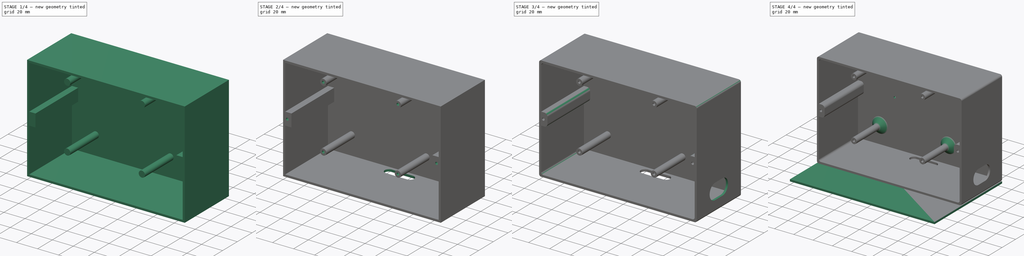
[diagram: build sequence overview — one tinted view per stage of 4, left to right]
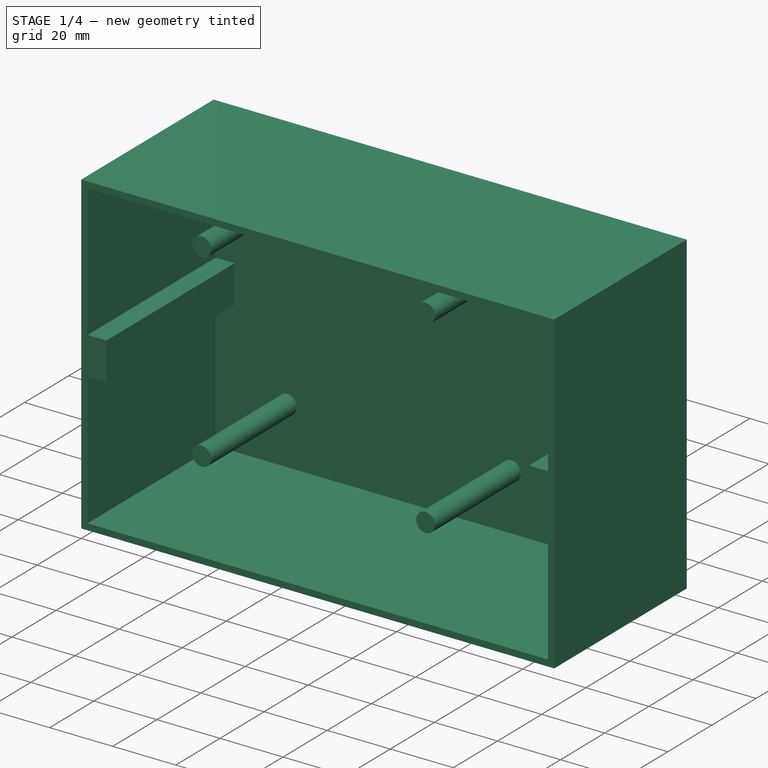
[diagram: stage 1 of 4 — iso view after this stage's code; geometry added in this stage tinted green]
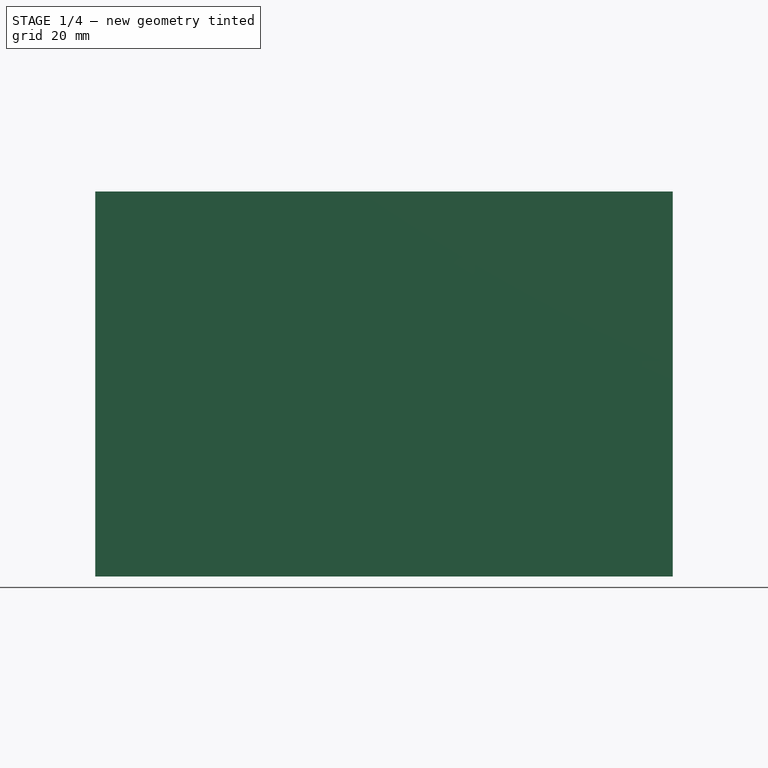
[diagram: stage 1 of 4 — front view after this stage's code; geometry added in this stage tinted green]
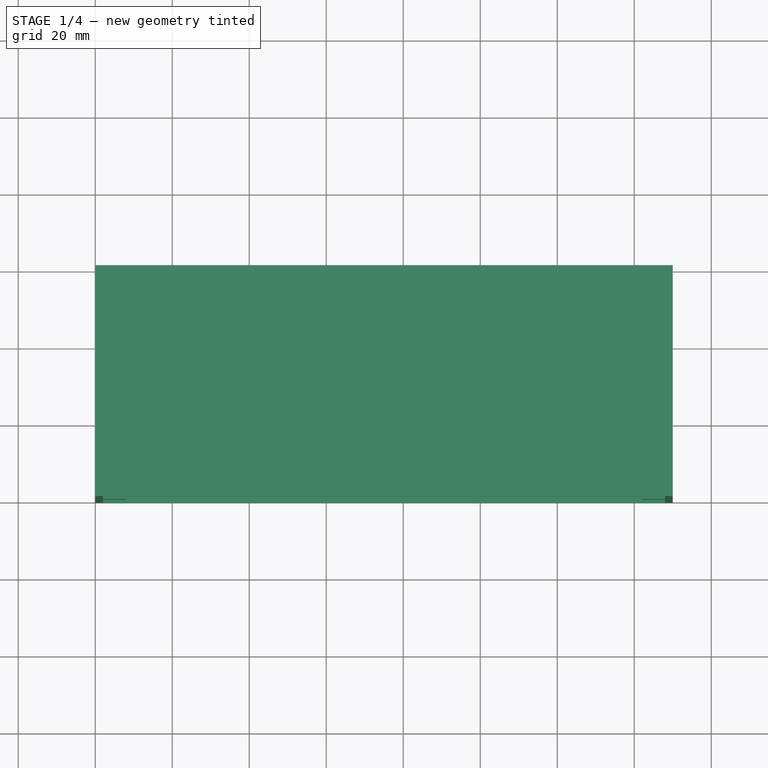
[diagram: stage 1 of 4 — top view after this stage's code; geometry added in this stage tinted green]
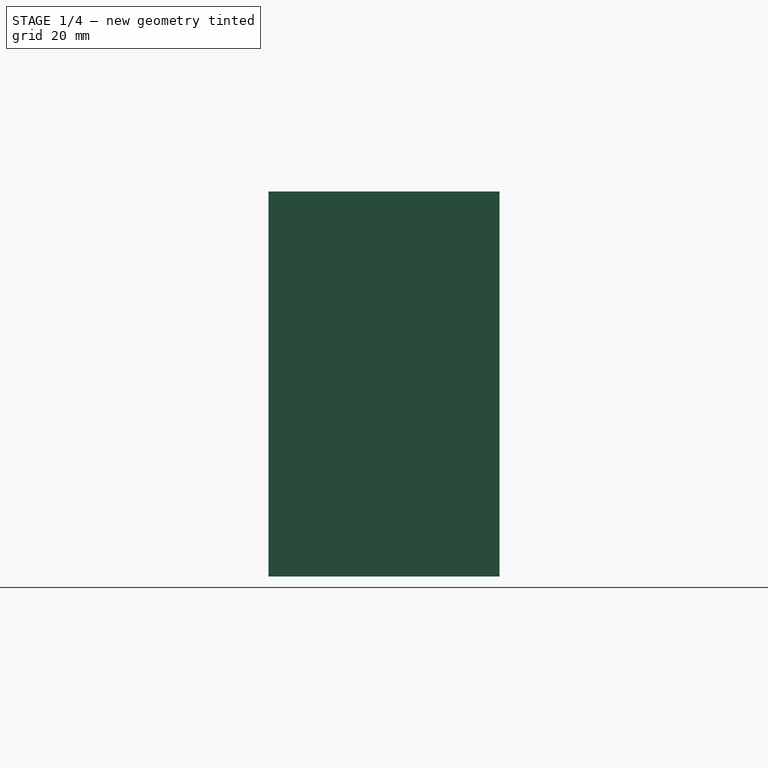
[diagram: stage 1 of 4 — right view after this stage's code; geometry added in this stage tinted green]
FCSTD DOCUMENT  (FreeCAD 0.19R22665 (Git))
Label: box_part
License: All rights reserved
LicenseURL: http://en.wikipedia.org/wiki/All_rights_reserved
objects: Sketcher::SketchObject×9, PartDesign::Pocket×4, PartDesign::Pad×3, PartDesign::Fillet×3, PartDesign::CoordinateSystem×3, PartDesign::Hole×2, PartDesign::Body×2, PartDesign::ShapeBinder×1, PartDesign::Chamfer×1
note: 41 computed .brp shape members not serialized (recipe doc carries the construction recipe); baked Part::Feature solids carry a one-line shape summary decoded from their .brp

FEATURE [Sketcher::SketchObject] Sketch
  MapMode = 5
  Placement = pos=(0,0,0) rot=(1,0,0;1.5708rad)
  Support = -> [XZ_Plane]
  sketch-geometry (4):
    g0: LineSegment StartX=0 StartY=0 StartZ=0 EndX=150 EndY=0 EndZ=0
    g1: LineSegment StartX=150 StartY=0 StartZ=0 EndX=150 EndY=100 EndZ=0
    g2: LineSegment StartX=150 StartY=100 StartZ=0 EndX=0 EndY=100 EndZ=0
    g3: LineSegment StartX=0 StartY=100 StartZ=0 EndX=0 EndY=0 EndZ=0
  constraints (11):
    c: Coincident(g0,g1)
    c: Coincident(g1,g2)
    c: Coincident(g2,g3)
    c: Coincident(g3,g0)
    c: Horizontal(g0)
    c: Horizontal(g2)
    c: Vertical(g1)
    c: Vertical(g3)
    c: Coincident(g0,g-1)
    c: Distance(g2) = 150
    c: Distance(g3) = 100
FEATURE [PartDesign::Pad] Pad
  Direction = (1,1,1)
  Length = 60
  Length2 = 100
  Placement = pos=(0,0,0) rot=(1,0,0;1.5708rad)
  Profile = -> Sketch
  Type = 0
FEATURE [Sketcher::SketchObject] Sketch001
  ExternalGeometry = -> [Pad]
  MapMode = 5
  Placement = pos=(0,-60,1e-16) rot=(1,0,0;1.5708rad)
  Support = -> [Pad]
  sketch-geometry (13):
    g0: LineSegment StartX=2 StartY=98 StartZ=0 EndX=148 EndY=98 EndZ=0
    g1: LineSegment StartX=148 StartY=98 StartZ=0 EndX=148 EndY=56 EndZ=0
    g2: LineSegment StartX=148 StartY=56 StartZ=0 EndX=142 EndY=56 EndZ=0
    g3: LineSegment StartX=142 StartY=56 StartZ=0 EndX=142 EndY=44 EndZ=0
    g4: LineSegment StartX=142 StartY=44 StartZ=0 EndX=148 EndY=44 EndZ=0
    g5: LineSegment StartX=148 StartY=44 StartZ=0 EndX=148 EndY=2 EndZ=0
    g6: LineSegment StartX=148 StartY=2 StartZ=0 EndX=2 EndY=2 EndZ=0
    g7: LineSegment StartX=2 StartY=2 StartZ=0 EndX=2 EndY=44 EndZ=0
    g8: LineSegment StartX=2 StartY=44 StartZ=0 EndX=8 EndY=44 EndZ=0
    g9: LineSegment StartX=8 StartY=44 StartZ=0 EndX=8 EndY=56 EndZ=0
    g10: LineSegment StartX=8 StartY=56 StartZ=0 EndX=2 EndY=56 EndZ=0
    g11: LineSegment StartX=2 StartY=56 StartZ=0 EndX=2 EndY=98 EndZ=0
    g12: LineSegment [constr] StartX=0 StartY=50 StartZ=0 EndX=150 EndY=50 EndZ=0
  constraints (37):
    c: Horizontal(g0)
    c: Coincident(g0,g1)
    c: Vertical(g1)
    c: Coincident(g1,g2)
    c: Horizontal(g2)
    c: Coincident(g2,g3)
    c: Vertical(g3)
    c: Coincident(g3,g4)
    c: Horizontal(g4)
    c: Coincident(g4,g5)
    c: Vertical(g5)
    c: Coincident(g5,g6)
    c: Horizontal(g6)
    c: Coincident(g6,g7)
    c: Vertical(g7)
    c: Coincident(g7,g8)
    c: Horizontal(g8)
    c: Coincident(g8,g9)
    c: Vertical(g9)
    c: Coincident(g9,g10)
    c: Horizontal(g10)
    c: Coincident(g10,g11)
    c: Coincident(g11,g0)
    c: Vertical(g11)
    c: DistanceX(g-1,g6) = 2
    c: DistanceY(g-1,g6) = 2
    c: DistanceX(g5,g-5) = 2
    c: DistanceY(g0,g-6) = 2
    c: PointOnObject(g12,g-4)
    c: PointOnObject(g12,g-5)
    c: Symmetric(g-6,g-1,g12)
    c: Symmetric(g10,g7,g12)
    c: DistanceX(g10,g10) = 6
    c: DistanceY(g9,g9) = 12
    c: Equal(g2,g10)
    c: Equal(g3,g9)
    c: Symmetric(g1,g4,g12)
FEATURE [PartDesign::Pocket] Pocket
  BaseFeature = -> Pad
  Length = 58
  Length2 = 100
  Placement = pos=(0,0,0) rot=(1,0,0;1.5708rad)
  Profile = -> Sketch001
  Type = 0
FEATURE [Sketcher::SketchObject] Sketch002
  ExternalGeometry = -> [Pocket]
  MapMode = 5
  Placement = pos=(0,-2,-4e-16) rot=(1,0,0;1.5708rad)
  Support = -> [Pocket]
  sketch-geometry (20):
    g0: LineSegment [constr] StartX=20.75 StartY=68 StartZ=0 EndX=100.75 EndY=68 EndZ=0
    g1: LineSegment [constr] StartX=100.75 StartY=68 StartZ=0 EndX=100.75 EndY=32 EndZ=0
    g2: LineSegment [constr] StartX=100.75 StartY=32 StartZ=0 EndX=20.75 EndY=32 EndZ=0
    g3: LineSegment [constr] StartX=20.75 StartY=32 StartZ=0 EndX=20.75 EndY=68 EndZ=0
    g4: LineSegment [constr] StartX=8 StartY=50 StartZ=0 EndX=142 EndY=50 EndZ=0
    g5: Circle [constr] CenterX=121.75 CenterY=50 CenterZ=0 NormalX=0 NormalY=0 NormalZ=1 AngleXU=0 Radius=9.5
    g6: LineSegment [constr] StartX=101.75 StartY=14 StartZ=0 EndX=18.75 EndY=14 EndZ=0
    g7: LineSegment [constr] StartX=18.75 StartY=14 StartZ=0 EndX=18.75 EndY=86 EndZ=0
    g8: LineSegment [constr] StartX=18.75 StartY=86 StartZ=0 EndX=101.75 EndY=86 EndZ=0
    g9: LineSegment [constr] StartX=101.75 StartY=86 StartZ=0 EndX=101.75 EndY=14 EndZ=0
    g10: LineSegment [constr] StartX=101.75 StartY=59 StartZ=0 EndX=107.75 EndY=59 EndZ=0
    g11: LineSegment [constr] StartX=107.75 StartY=59 StartZ=0 EndX=107.75 EndY=72 EndZ=0
    g12: LineSegment [constr] StartX=107.75 StartY=72 StartZ=0 EndX=101.75 EndY=72 EndZ=0
    g13: LineSegment [constr] StartX=101.75 StartY=72 StartZ=0 EndX=101.75 EndY=59 EndZ=0
    g14: Circle [constr] CenterX=13.375 CenterY=50 CenterZ=0 NormalX=0 NormalY=0 NormalZ=1 AngleXU=0 Radius=5.375
    g15: Circle [constr] CenterX=136.625 CenterY=50 CenterZ=0 NormalX=0 NormalY=0 NormalZ=1 AngleXU=0 Radius=5.375
    g16: Circle CenterX=24.75 CenterY=80 CenterZ=0 NormalX=0 NormalY=0 NormalZ=1 AngleXU=0 Radius=3
    g17: Circle CenterX=95.75 CenterY=80 CenterZ=0 NormalX=0 NormalY=0 NormalZ=1 AngleXU=0 Radius=3
    g18: Circle CenterX=24.75 CenterY=20 CenterZ=0 NormalX=0 NormalY=0 NormalZ=1 AngleXU=0 Radius=3
    g19: Circle CenterX=95.75 CenterY=20 CenterZ=0 NormalX=0 NormalY=0 NormalZ=1 AngleXU=0 Radius=3
  constraints (59):
    c: Coincident(g0,g1)
    c: Coincident(g1,g2)
    c: Coincident(g2,g3)
    c: Coincident(g3,g0)
    c: Horizontal(g0)
    c: Horizontal(g2)
    c: Vertical(g1)
    c: DistanceY(g3,g3) = 36
    c: DistanceX(g0,g0) = 80
    c: PointOnObject(g4,g-13)
    c: PointOnObject(g4,g-11)
    c: Symmetric(g-13,g-14,g4)
    c: Symmetric(g0,g2,g4)
    c: PointOnObject(g5,g4)
    c: Diameter(g5) = 19
    c: Coincident(g6,g7)
    c: Coincident(g7,g8)
    c: Coincident(g8,g9)
    c: Coincident(g9,g6)
    c: Horizontal(g6)
    c: Horizontal(g8)
    c: Vertical(g7)
    c: Vertical(g9)
    c: DistanceX(g6,g2) = 2
    c: DistanceY(g0,g7) = 18
    c: DistanceY(g6,g2) = 18
    c: DistanceX(g8,g8) = 83
    c: Coincident(g10,g11)
    c: Coincident(g11,g12)
    c: Coincident(g12,g13)
    c: Coincident(g13,g10)
    c: Horizontal(g10)
    c: Horizontal(g12)
    c: Vertical(g11)
    c: Vertical(g13)
    c: PointOnObject(g10,g9)
    c: DistanceY(g11,g11) = 13
    c: DistanceY(g12,g8) = 14
    c: DistanceX(g12,g12) = 6
    c: DistanceX(g6,g5) = 20
    c: PointOnObject(g14,g4)
    c: PointOnObject(g4,g14)
    c: Tangent(g14,g7)
    c: PointOnObject(g15,g4)
    c: PointOnObject(g4,g15)
    c: Tangent(g15,g5)
    c: Equal(g15,g14)
    c: DistanceX(g7,g16) = 6
    c: DistanceY(g16,g7) = 6
    c: Diameter(g16) = 6
    c: Horizontal(g17,g16)
    c: Equal(g17,g16)
    c: DistanceX(g17,g8) = 6
    c: Equal(g18,g16)
    c: Vertical(g16,g18)
    c: DistanceY(g6,g18) = 6
    c: Equal(g19,g16)
    c: Horizontal(g19,g18)
    c: Vertical(g17,g19)
FEATURE [PartDesign::Pad] Pad001
  BaseFeature = -> Pocket
  Direction = (1,1,1)
  Length = 38.8
  Length2 = 100
  Placement = pos=(0,0,0) rot=(1,0,0;1.5708rad)
  Profile = -> Sketch002
  Type = 0
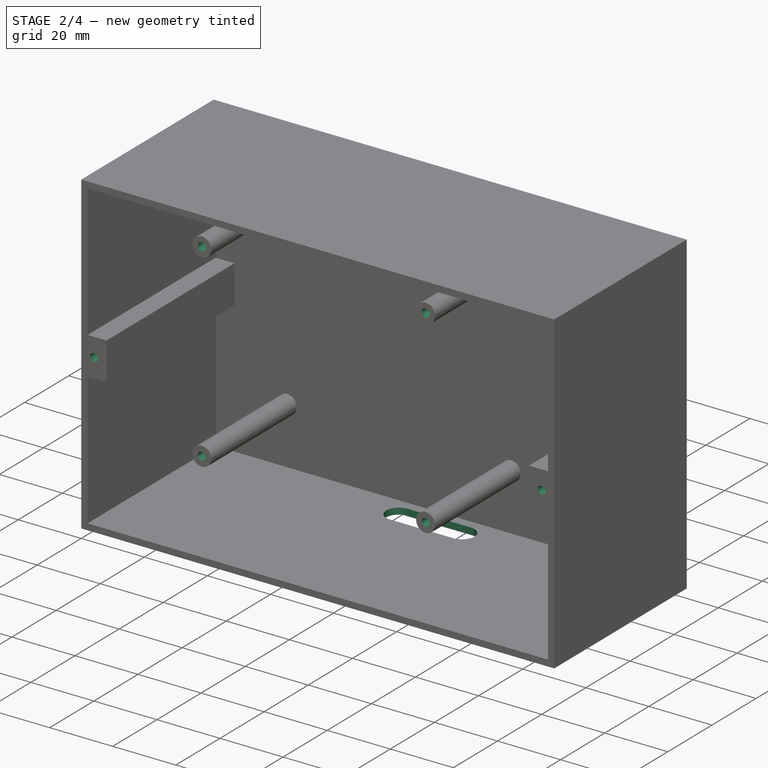
[diagram: stage 2 of 4 — iso view after this stage's code; geometry added in this stage tinted green]
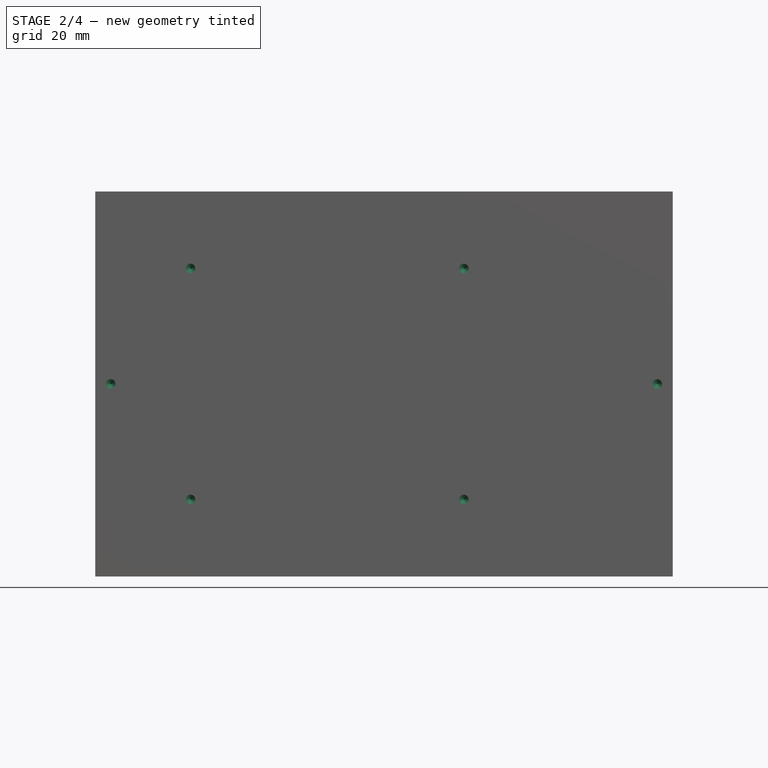
[diagram: stage 2 of 4 — front view after this stage's code; geometry added in this stage tinted green]
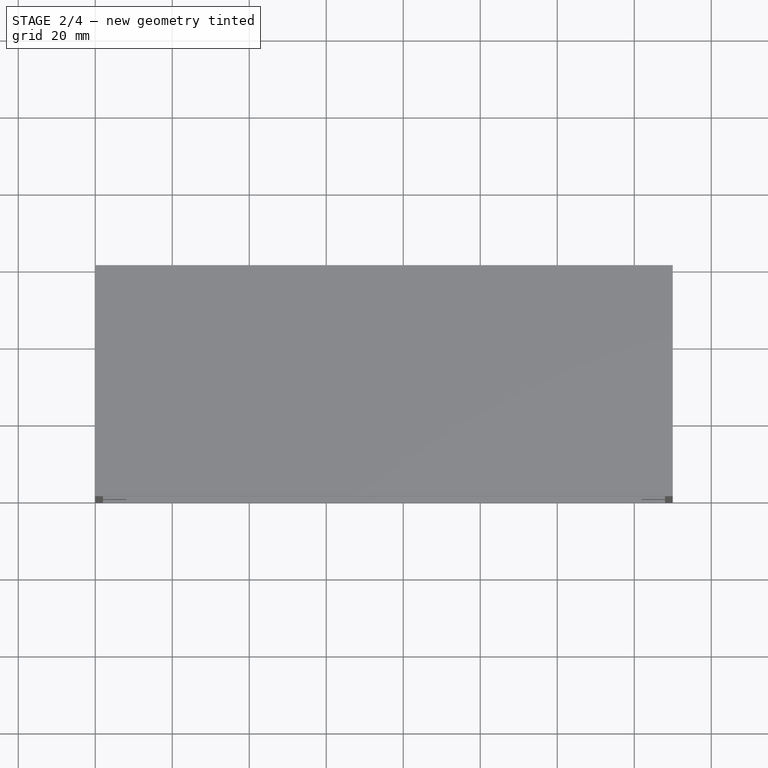
[diagram: stage 2 of 4 — top view after this stage's code; geometry added in this stage tinted green]
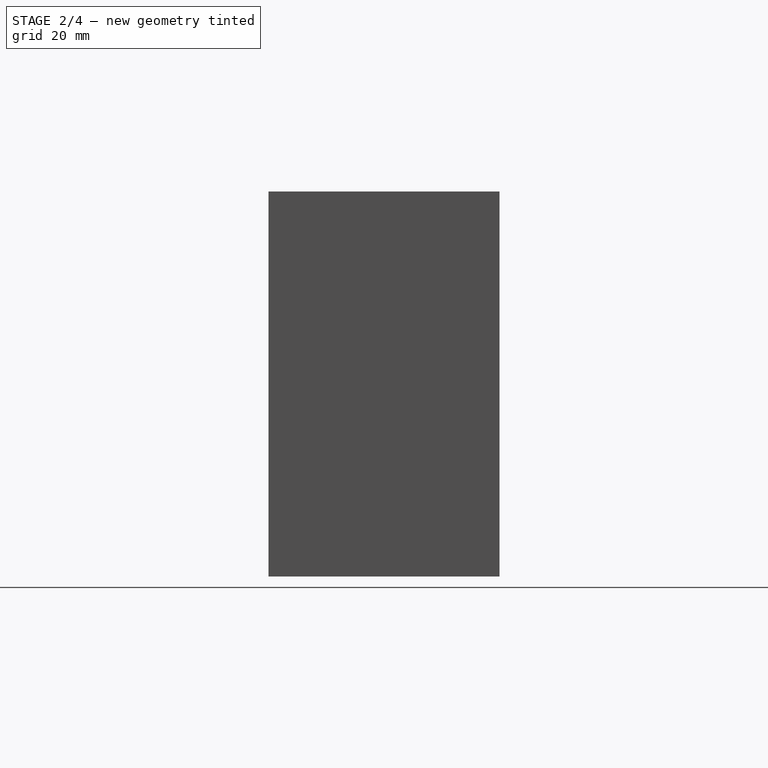
[diagram: stage 2 of 4 — right view after this stage's code; geometry added in this stage tinted green]
FEATURE [Sketcher::SketchObject] Sketch003
  ExternalGeometry = -> [Pad001]
  MapMode = 5
  Placement = pos=(0,-40.8,-2.53e-14) rot=(1,0,0;1.5708rad)
  Support = -> [Pad001]
  sketch-geometry (4):
    g0: Circle CenterX=24.75 CenterY=80 CenterZ=0 NormalX=0 NormalY=0 NormalZ=1 AngleXU=0 Radius=1.5
    g1: Circle CenterX=95.75 CenterY=80 CenterZ=0 NormalX=0 NormalY=0 NormalZ=1 AngleXU=0 Radius=1.5
    g2: Circle CenterX=95.75 CenterY=20 CenterZ=0 NormalX=0 NormalY=0 NormalZ=1 AngleXU=0 Radius=1.5
    g3: Circle CenterX=24.75 CenterY=20 CenterZ=0 NormalX=0 NormalY=0 NormalZ=1 AngleXU=0 Radius=1.5
  constraints (8):
    c: Coincident(g0,g-3)
    c: Diameter(g0) = 3
    c: Coincident(g1,g-4)
    c: Coincident(g2,g-6)
    c: Coincident(g3,g-5)
    c: Equal(g3,g0)
    c: Equal(g1,g0)
    c: Equal(g1,g2)
FEATURE [PartDesign::Hole] Hole
  BaseFeature = -> Pad001
  Depth = 20
  DepthType = 0
  Diameter = 2.5
  DrillPoint = 1
  DrillPointAngle = 118
  HoleCutCountersinkAngle = 90
  HoleCutDepth = 0
  HoleCutDiameter = 3
  HoleCutType = 0
  ModelActualThread = false
  Placement = pos=(0,0,0) rot=(1,0,0;1.5708rad)
  Profile = -> Sketch003
  Refine = true
  Tapered = false
  TaperedAngle = 90
  ThreadAngle = 60
  ThreadClass = 0
  ThreadCutOffInner = 0.0541266
  ThreadCutOffOuter = 0.108253
  ThreadDirection = 0
  ThreadFit = 0
  ThreadPitch = 0.5
  ThreadSize = 3
  ThreadType = 1
  Threaded = true
FEATURE [Sketcher::SketchObject] Sketch004
  ExternalGeometry = -> [Hole]
  MapMode = 5
  Placement = pos=(0,-60,1.34e-14) rot=(1,0,0;1.5708rad)
  Support = -> [Hole]
  sketch-geometry (7):
    g0: Circle CenterX=146 CenterY=50 CenterZ=0 NormalX=0 NormalY=0 NormalZ=1 AngleXU=0 Radius=3
    g1: Circle CenterX=4 CenterY=50 CenterZ=0 NormalX=0 NormalY=0 NormalZ=1 AngleXU=0 Radius=3
    g2: LineSegment [constr] StartX=8 StartY=56 StartZ=0 EndX=8 EndY=100 EndZ=0
    g3: LineSegment [constr] StartX=4 StartY=100 StartZ=0 EndX=4 EndY=44 EndZ=0
    g4: LineSegment [constr] StartX=8 StartY=50 StartZ=0 EndX=0 EndY=50 EndZ=0
    g5: LineSegment [constr] StartX=142 StartY=56 StartZ=0 EndX=142 EndY=100 EndZ=0
    g6: LineSegment [constr] StartX=146 StartY=100 StartZ=0 EndX=146 EndY=44 EndZ=0
  constraints (21):
    c: Equal(g1,g0)
    c: Diameter(g0) = 6
    c: Horizontal(g0,g1)
    c: Coincident(g2,g-13)
    c: PointOnObject(g2,g-9)
    c: Vertical(g2)
    c: PointOnObject(g3,g-9)
    c: PointOnObject(g3,g-7)
    c: Symmetric(g-9,g2,g3)
    c: PointOnObject(g1,g3)
    c: PointOnObject(g4,g-13)
    c: PointOnObject(g4,g-6)
    c: Symmetric(g2,g-13,g4)
    c: PointOnObject(g1,g4)
    c: Coincident(g5,g-11)
    c: PointOnObject(g5,g-9)
    c: Vertical(g5)
    c: PointOnObject(g6,g-9)
    c: PointOnObject(g6,g-14)
    c: Symmetric(g5,g-9,g6)
    c: PointOnObject(g0,g6)
FEATURE [PartDesign::Hole] Hole001
  BaseFeature = -> Hole
  Depth = 30
  DepthType = 0
  Diameter = 2.5
  DrillPoint = 1
  DrillPointAngle = 118
  HoleCutCountersinkAngle = 90
  HoleCutDepth = 0
  HoleCutDiameter = 3
  HoleCutType = 0
  ModelActualThread = false
  Placement = pos=(0,0,0) rot=(1,0,0;1.5708rad)
  Profile = -> Sketch004
  Refine = true
  Tapered = false
  TaperedAngle = 90
  ThreadAngle = 60
  ThreadClass = 0
  ThreadCutOffInner = 0.0541266
  ThreadCutOffOuter = 0.108253
  ThreadDirection = 0
  ThreadFit = 0
  ThreadPitch = 0.5
  ThreadSize = 3
  ThreadType = 1
  Threaded = true
FEATURE [Sketcher::SketchObject] Sketch005
  ExternalGeometry = -> [Hole001]
  MapMode = 5
  Placement = pos=(0,0,0) rot=(1,0,0;3.14159rad)
  Support = -> [Hole001]
  sketch-geometry (5):
    g0: LineSegment [constr] StartX=75 StartY=60 StartZ=0 EndX=75 EndY=0 EndZ=0
    g1: ArcOfCircle CenterX=65 CenterY=9 CenterZ=0 NormalX=0 NormalY=0 NormalZ=1 AngleXU=0 Radius=4 StartAngle=1.5708 EndAngle=4.71239
    g2: ArcOfCircle CenterX=85 CenterY=9 CenterZ=0 NormalX=0 NormalY=0 NormalZ=1 AngleXU=0 Radius=4 StartAngle=4.71239 EndAngle=7.85398
    g3: LineSegment StartX=65 StartY=5 StartZ=0 EndX=85 EndY=5 EndZ=0
    g4: LineSegment StartX=65 StartY=13 StartZ=0 EndX=85 EndY=13 EndZ=0
  constraints (12):
    c: PointOnObject(g0,g-3)
    c: PointOnObject(g0,g-5)
    c: Symmetric(g-4,g-6,g0)
    c: Tangent(g1,g4)
    c: Tangent(g1,g3)
    c: Tangent(g3,g2)
    c: Tangent(g4,g2)
    c: Horizontal(g3)
    c: DistanceX(g1,g2) = 20
    c: DistanceY(g1,g1) = 8
    c: Symmetric(g2,g1,g0)
    c: DistanceY(g0,g2) = 5
FEATURE [PartDesign::Pocket] Pocket001
  BaseFeature = -> Hole001
  Length = 5
  Length2 = 100
  Placement = pos=(0,0,0) rot=(1,0,0;1.5708rad)
  Profile = -> Sketch005
  Type = 2
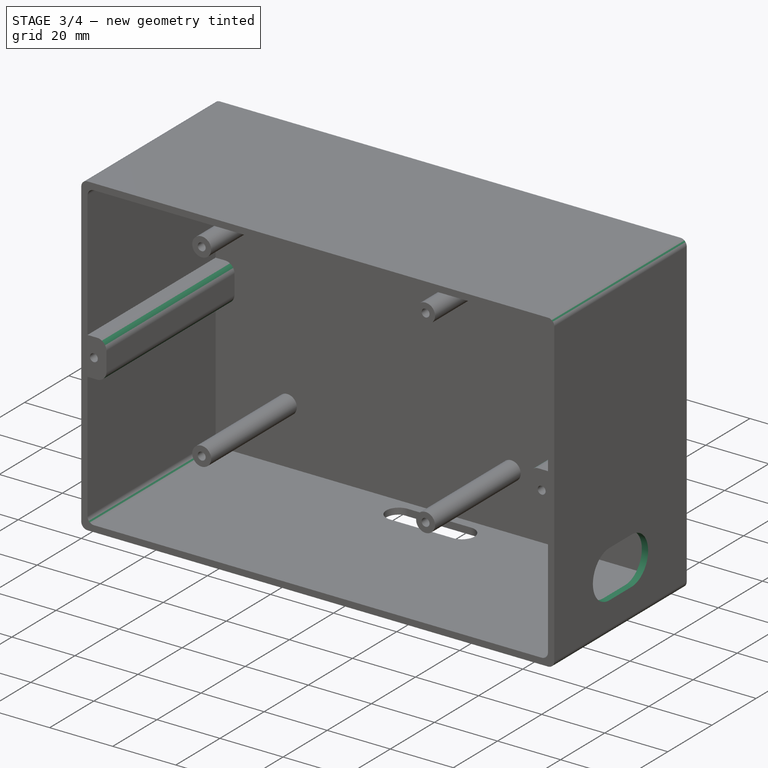
[diagram: stage 3 of 4 — iso view after this stage's code; geometry added in this stage tinted green]
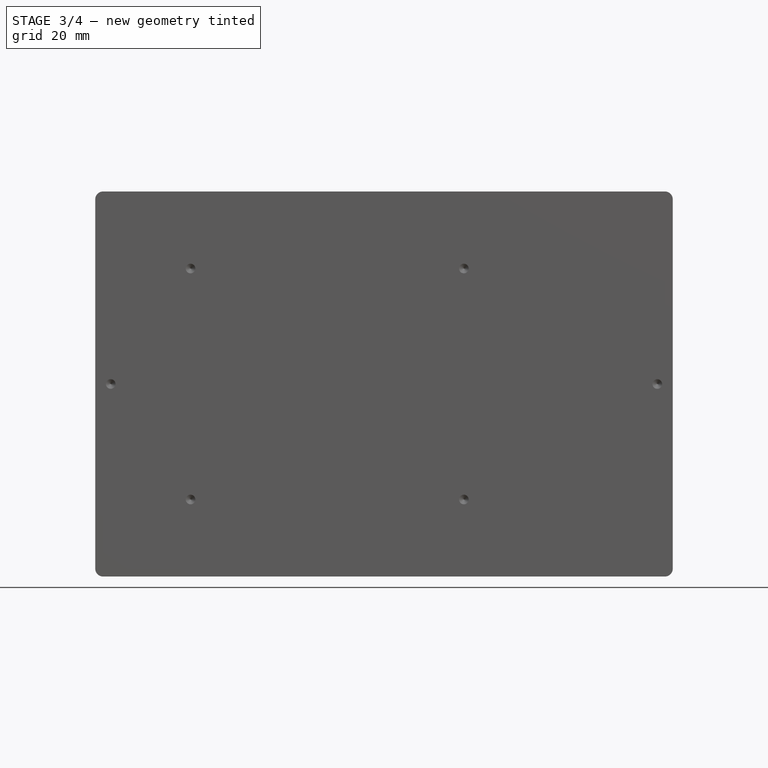
[diagram: stage 3 of 4 — front view after this stage's code; geometry added in this stage tinted green]
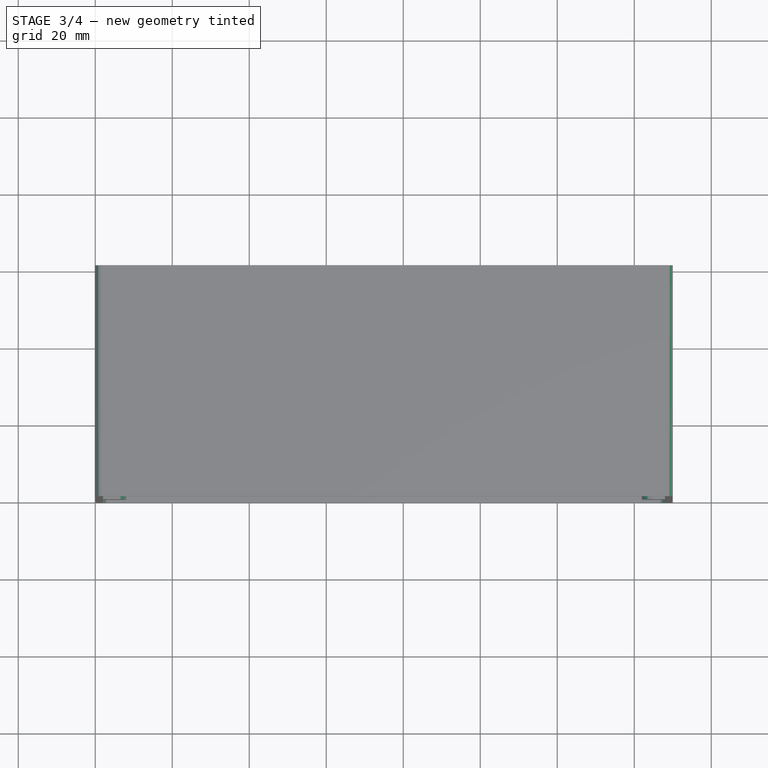
[diagram: stage 3 of 4 — top view after this stage's code; geometry added in this stage tinted green]
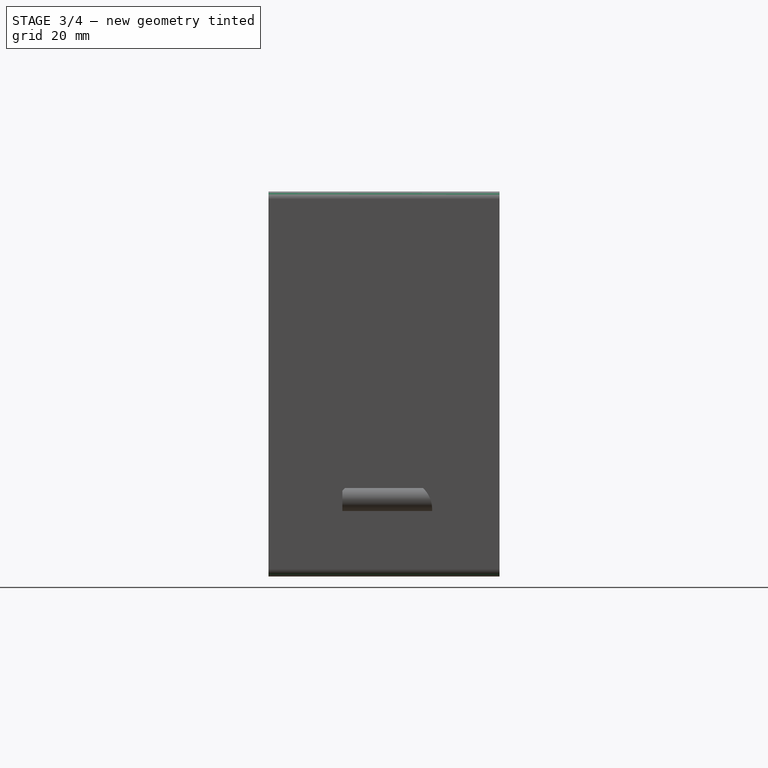
[diagram: stage 3 of 4 — right view after this stage's code; geometry added in this stage tinted green]
FEATURE [Sketcher::SketchObject] Sketch006
  ExternalGeometry = -> [Pocket001]
  MapMode = 5
  Placement = pos=(150,0,0) rot=(0.707107,0,0.707107;3.14159rad)
  Support = -> [Pocket001]
  sketch-geometry (5):
    g0: LineSegment [constr] StartX=0 StartY=30 StartZ=0 EndX=2 EndY=30 EndZ=0
    g1: ArcOfCircle CenterX=17.5 CenterY=35 CenterZ=0 NormalX=0 NormalY=0 NormalZ=1 AngleXU=0 Radius=7.5 StartAngle=1e-16 EndAngle=3.14159
    g2: ArcOfCircle CenterX=17.5 CenterY=25 CenterZ=0 NormalX=0 NormalY=0 NormalZ=1 AngleXU=0 Radius=7.5 StartAngle=3.14159 EndAngle=6.28319
    g3: LineSegment StartX=10 StartY=35 StartZ=0 EndX=10 EndY=25 EndZ=0
    g4: LineSegment StartX=25 StartY=35 StartZ=0 EndX=25 EndY=25 EndZ=0
  constraints (12):
    c: PointOnObject(g0,g-6)
    c: PointOnObject(g0,g-4)
    c: Symmetric(g-6,g-1,g0)
    c: Tangent(g1,g4)
    c: Tangent(g1,g3)
    c: Tangent(g3,g2)
    c: Tangent(g4,g2)
    c: Vertical(g3)
    c: Symmetric(g1,g2,g0)
    c: DistanceX(g1,g1) = 15
    c: Distance(g1,g2) = 10
    c: DistanceX(g-6,g1) = 10
FEATURE [PartDesign::Pocket] Pocket002
  BaseFeature = -> Pocket001
  Length = 5
  Length2 = 100
  Placement = pos=(0,0,0) rot=(1,0,0;1.5708rad)
  Profile = -> Sketch006
  Type = 2
FEATURE [Sketcher::SketchObject] Sketch007
  ExternalGeometry = -> [Pocket002]
  MapMode = 5
  Placement = pos=(8e-16,-40.8,-5.6e-15) rot=(1,0,0;1.5708rad)
  Support = -> [Pocket002]
  sketch-geometry (5):
    g0: LineSegment [constr] StartX=9e-16 StartY=50 StartZ=0 EndX=142 EndY=50 EndZ=0
    g1: Circle CenterX=40 CenterY=50 CenterZ=0 NormalX=0 NormalY=0 NormalZ=1 AngleXU=0 Radius=1
    g2: Circle CenterX=110 CenterY=50 CenterZ=0 NormalX=0 NormalY=0 NormalZ=1 AngleXU=0 Radius=1
    g3: Circle [constr] CenterX=23.5 CenterY=50 CenterZ=0 NormalX=0 NormalY=0 NormalZ=1 AngleXU=0 Radius=15.5
    g4: Circle [constr] CenterX=126.5 CenterY=50 CenterZ=0 NormalX=0 NormalY=0 NormalZ=1 AngleXU=0 Radius=15.5
  constraints (15):
    c: PointOnObject(g0,g-4)
    c: Tangent(g3,g-5)
    c: Tangent(g3,g1)
    c: PointOnObject(g1,g0)
    c: Diameter(g1) = 2
    c: PointOnObject(g3,g0)
    c: PointOnObject(g2,g0)
    c: Equal(g2,g1)
    c: PointOnObject(g4,g0)
    c: Tangent(g4,g-6)
    c: Tangent(g4,g2)
    c: DistanceX(g1,g2) = 70
    c: Symmetric(g-5,g-5,g0)
    c: Equal(g3,g4)
    c: PointOnObject(g0,g-6)
FEATURE [PartDesign::Fillet] Fillet002
  Base = -> Pocket002 [Edge30,Edge4,Edge9,Edge1]
  BaseFeature = -> Pocket002
  Placement = pos=(0,0,0) rot=(1,0,0;1.5708rad)
  Radius = 2
  SupportTransform = false
FEATURE [PartDesign::Body] Body001  label="coperchio"
  Group = -> [ShapeBinder,Sketch008,Pad002]
  Origin = -> Origin001
  Tip = -> Pad002
FEATURE [PartDesign::Fillet] Fillet
  Base = -> Fillet002 [Edge76,Edge63,Edge72,Edge58]
  BaseFeature = -> Fillet002
  Placement = pos=(0,0,0) rot=(1,0,0;1.5708rad)
  Radius = 2
  SupportTransform = false
FEATURE [PartDesign::Fillet] Fillet003
  Base = -> Fillet [Edge36,Edge32,Edge46,Edge50]
  BaseFeature = -> Fillet
  Placement = pos=(0,0,0) rot=(1,0,0;1.5708rad)
  Radius = 3
  SupportTransform = false
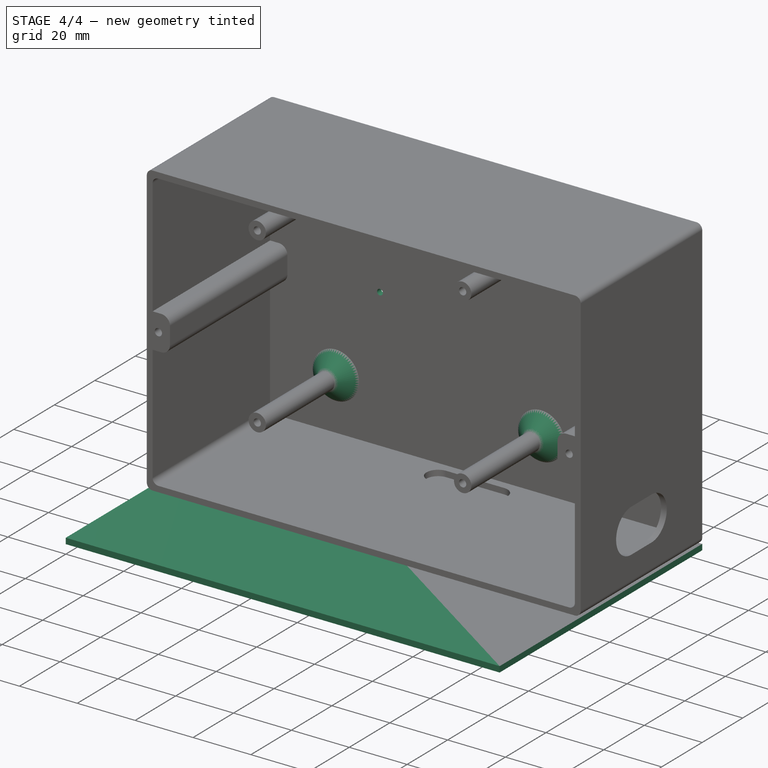
[diagram: stage 4 of 4 — iso view after this stage's code; geometry added in this stage tinted green]
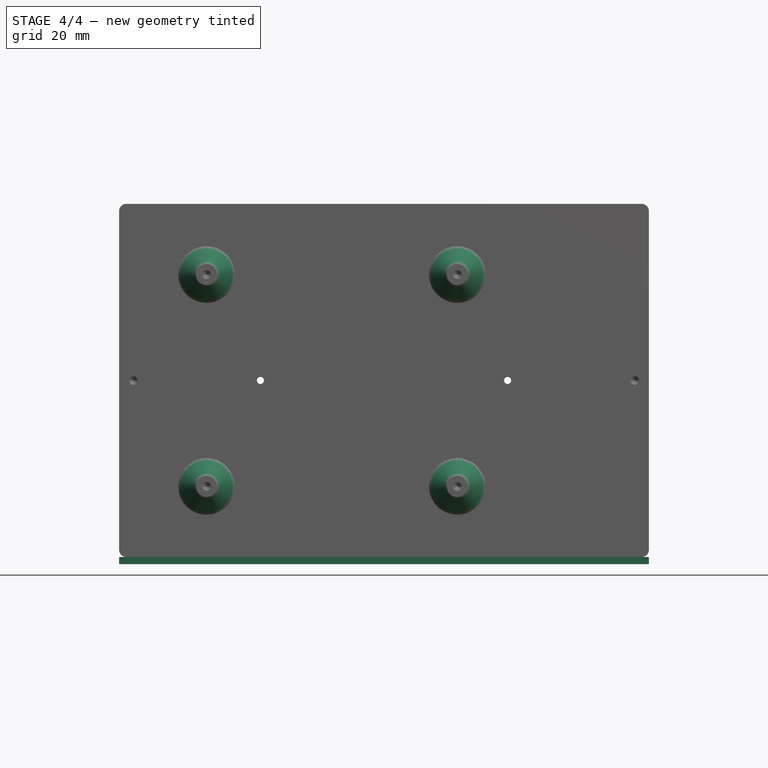
[diagram: stage 4 of 4 — front view after this stage's code; geometry added in this stage tinted green]
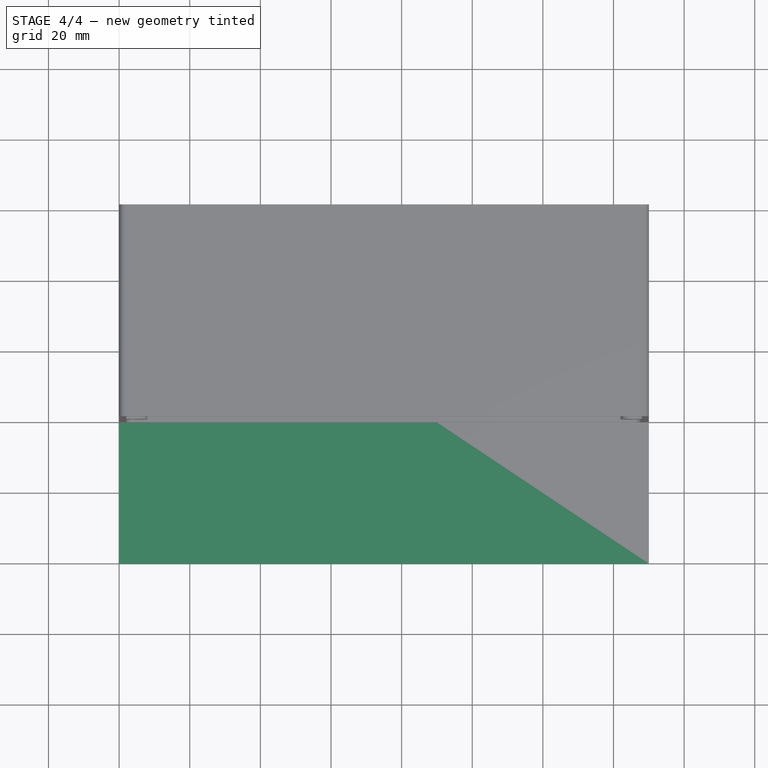
[diagram: stage 4 of 4 — top view after this stage's code; geometry added in this stage tinted green]
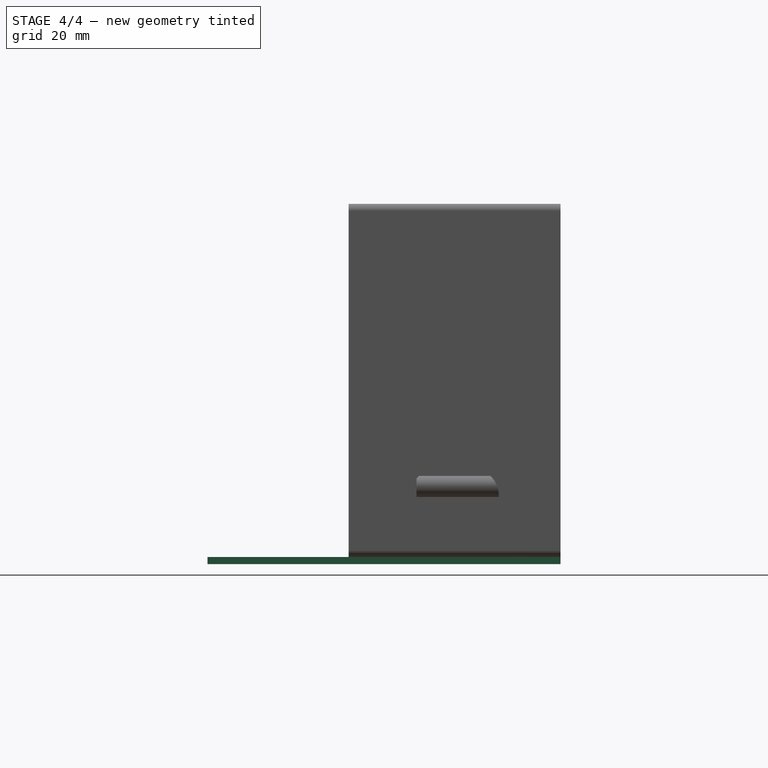
[diagram: stage 4 of 4 — right view after this stage's code; geometry added in this stage tinted green]
FEATURE [PartDesign::ShapeBinder] ShapeBinder
  Placement = pos=(0,0,0) rot=(1,0,0;1.5708rad)
  Support = -> [Fillet002]
  TraceSupport = false
FEATURE [Sketcher::SketchObject] Sketch008
  MapMode = 5
  Placement = pos=(0,0,0) rot=(1,0,0;3.14159rad)
  Support = -> [ShapeBinder]
  sketch-geometry (4):
    g0: LineSegment StartX=0 StartY=0 StartZ=0 EndX=150 EndY=0 EndZ=0
    g1: LineSegment StartX=150 StartY=0 StartZ=0 EndX=150 EndY=100 EndZ=0
    g2: LineSegment StartX=150 StartY=100 StartZ=0 EndX=0 EndY=100 EndZ=0
    g3: LineSegment StartX=0 StartY=100 StartZ=0 EndX=0 EndY=0 EndZ=0
  constraints (9):
    c: Coincident(g0,g1)
    c: Coincident(g1,g2)
    c: Coincident(g2,g3)
    c: Coincident(g3,g0)
    c: Horizontal(g0)
    c: Horizontal(g2)
    c: Vertical(g1)
    c: Vertical(g3)
    c: Coincident(g0,g-1)
FEATURE [PartDesign::Pad] Pad002
  Direction = (1,1,1)
  Length = 2
  Length2 = 100
  Placement = pos=(0,0,0) rot=(1,0,0;1.5708rad)
  Profile = -> Sketch008
  Type = 0
FEATURE [PartDesign::Pocket] Pocket003
  BaseFeature = -> Fillet003
  Length = 2
  Length2 = 100
  Placement = pos=(0,0,0) rot=(1,0,0;1.5708rad)
  Profile = -> Sketch007
  Type = 1
FEATURE [PartDesign::CoordinateSystem] LCS_backplane
  AttacherType = Attacher::AttachEngine3D
  MapMode = 5
  Placement = pos=(0,-2,9e-16) rot=(0,0.707107,0.707107;3.14159rad)
  Support = -> [Pocket003]
FEATURE [PartDesign::CoordinateSystem] LCS_pcb
  AttacherType = Attacher::AttachEngine3D
  MapMode = 11
  Placement = pos=(24.75,-40.8,20) rot=(0.57735,-0.57735,0.57735;2.0944rad)
  Support = -> [Pocket003]
FEATURE [PartDesign::CoordinateSystem] LCS_coperchio
  AttacherType = Attacher::AttachEngine3D
  MapMode = 11
  Placement = pos=(4,-60,50) rot=(0.57735,-0.57735,0.57735;2.0944rad)
  Support = -> [Pocket003]
FEATURE [PartDesign::Chamfer] Chamfer
  Angle = 45
  Base = -> Pocket003 [Edge107,Edge109,Edge112,Edge110]
  BaseFeature = -> Pocket003
  ChamferType = 0
  FlipDirection = false
  Placement = pos=(0,0,0) rot=(1,0,0;1.5708rad)
  Size = 5
  Size2 = 1
  SupportTransform = false
FEATURE [PartDesign::Body] Body  label="box"
  Group = -> [Sketch,Pad,Sketch001,Pocket,Sketch002,Pad001,Sketch003,Hole,Sketch004,Hole001,Sketch005,Pocket001,Sketch006,Pocket002,Sketch007,Fillet002,LCS_backplane,LCS_pcb,LCS_coperchio,Fillet,Fillet003,Pocket003,Chamfer]
  Origin = -> Origin
  Tip = -> Chamfer
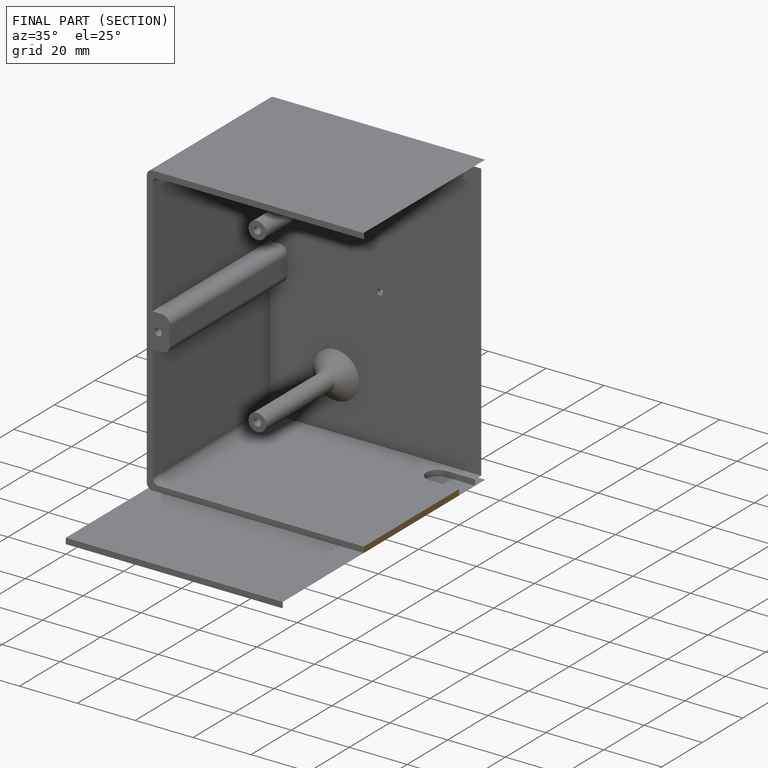
[diagram: finished part — half-section view (interior)]
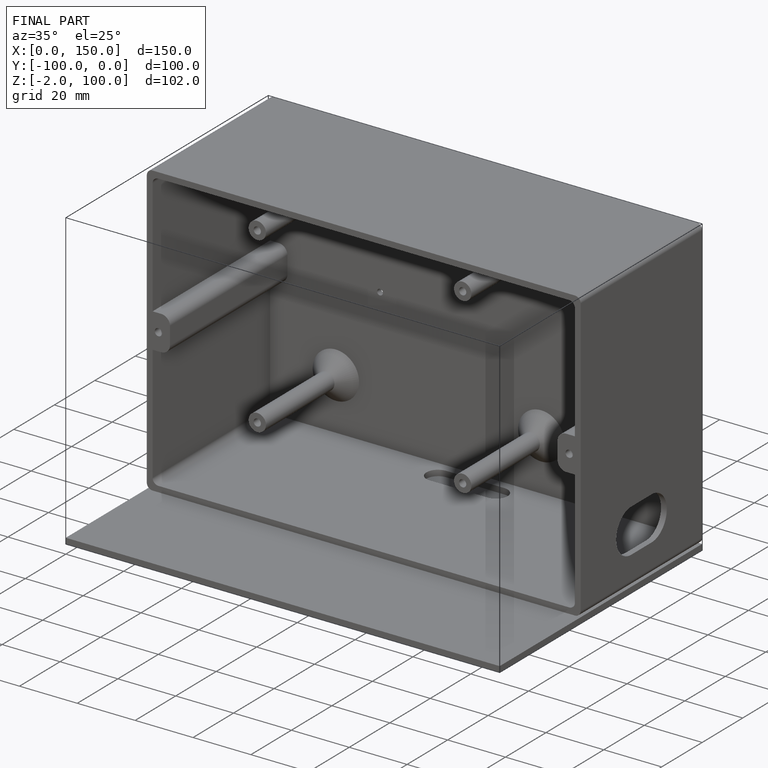
[diagram: finished part — iso view with bounding-box wireframe]
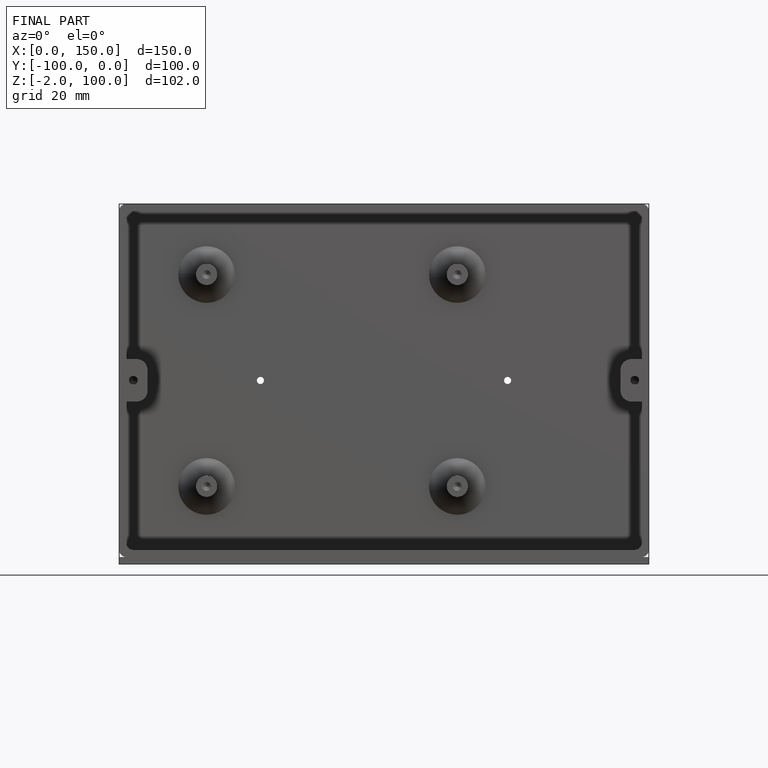
[diagram: finished part — front view with bounding-box wireframe]
